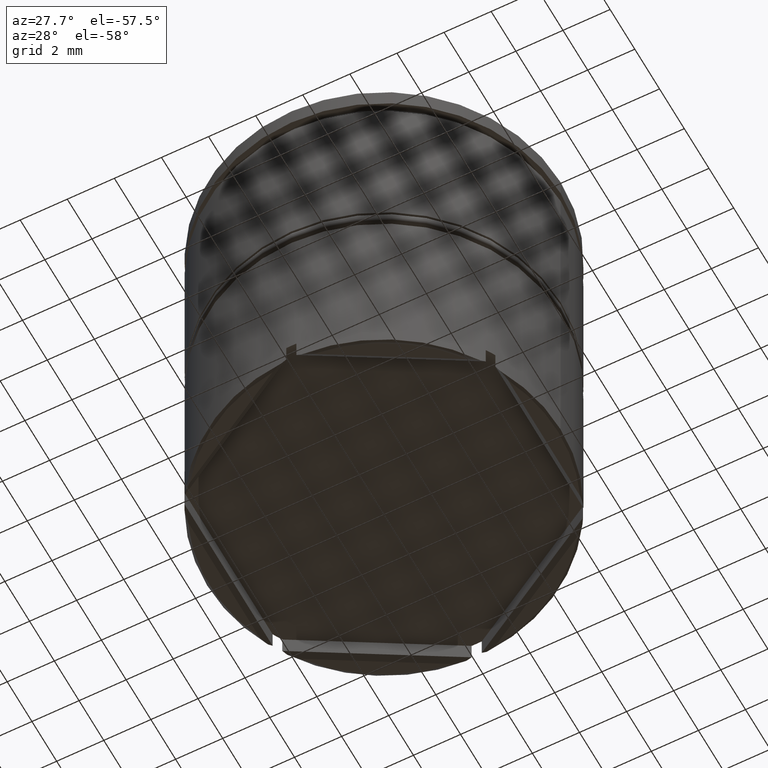
[diagram: clean part render]
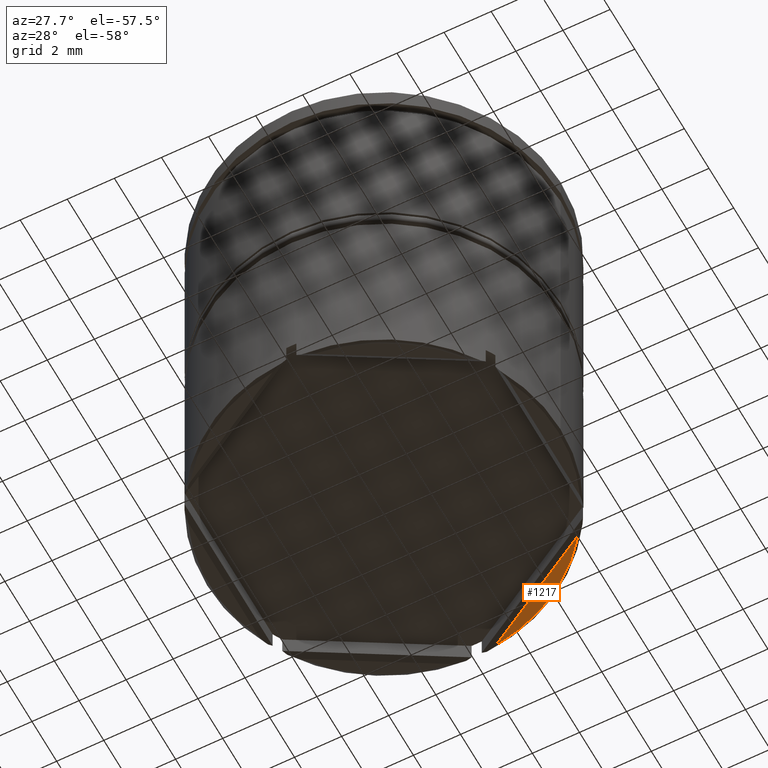
[diagram: same view with one face highlighted and labeled with its STEP entity id]
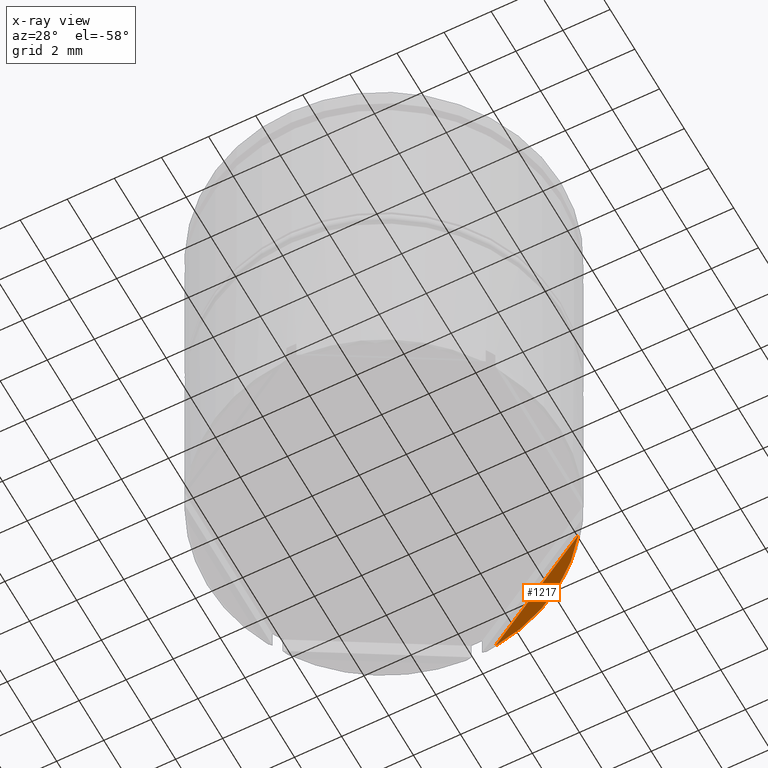
[diagram: x-ray of the same camera — body ghosted, the highlighted face saturated]
A machine part, auxiliary view. The second image highlights one B-rep face of the part: STEP entity #1217.
The next image is the same camera in x-ray: the body ghosted, the highlighted face saturated — about 0% of this face is hidden behind the body in this view.
In plain terms, the highlighted planar face has unit normal (0, 0, -1).
Its self-contained STEP definition (entity closure, byte-faithful):
#26 = ORIENTED_EDGE ( 'NONE', *, *, #313, .T. ) ;
#50 = CARTESIAN_POINT ( 'NONE',  ( 0.000000000000000000, 7.500000000000000000, -17.50000000000000000 ) ) ;
#190 = LINE ( 'NONE', #1304, #470 ) ;
#241 = CARTESIAN_POINT ( 'NONE',  ( 0.000000000000000000, 0.000000000000000000, -17.50000000000000000 ) ) ;
#282 = DIRECTION ( 'NONE',  ( -0.8660254037844385966, 0.5000000000000002220, 0.000000000000000000 ) ) ;
#296 = DIRECTION ( 'NONE',  ( 0.000000000000000000, 0.000000000000000000, -1.000000000000000000 ) ) ;
#310 = DIRECTION ( 'NONE',  ( -1.000000000000000000, 0.000000000000000000, -0.000000000000000000 ) ) ;
#313 = EDGE_CURVE ( 'NONE', #410, #652, #190, .T. ) ;
#410 = VERTEX_POINT ( 'NONE', #1343 ) ;
#470 = VECTOR ( 'NONE', #282, 999.9999999999998863 ) ;
#482 = DIRECTION ( 'NONE',  ( -1.000000000000000000, 0.000000000000000000, 0.000000000000000000 ) ) ;
#610 = CIRCLE ( 'NONE', #1375, 7.400000000000006573 ) ;
#640 = CARTESIAN_POINT ( 'NONE',  ( 0.8721550680470955275, 7.348424697666831484, -17.50000000000000000 ) ) ;
#652 = VERTEX_POINT ( 'NONE', #640 ) ;
#716 = EDGE_LOOP ( 'NONE', ( #1592, #26 ) ) ;
#830 = FACE_OUTER_BOUND ( 'NONE', #716, .T. ) ;
#933 = PLANE ( 'NONE',  #960 ) ;
#960 = AXIS2_PLACEMENT_3D ( 'NONE', #50, #296, #310 ) ;
#1217 = ADVANCED_FACE ( 'NONE', ( #830 ), #933, .T. ) ;
#1304 = CARTESIAN_POINT ( 'NONE',  ( 0.5017246507621122564, 7.562292798802341842, -17.50000000000000000 ) ) ;
#1343 = CARTESIAN_POINT ( 'NONE',  ( 5.927844931952911622, 4.429520793801547285, -17.50000000000000000 ) ) ;
#1365 = EDGE_CURVE ( 'NONE', #652, #410, #610, .T. ) ;
#1366 = DIRECTION ( 'NONE',  ( 0.000000000000000000, 0.000000000000000000, -1.000000000000000000 ) ) ;
#1375 = AXIS2_PLACEMENT_3D ( 'NONE', #241, #1366, #482 ) ;
#1592 = ORIENTED_EDGE ( 'NONE', *, *, #1365, .T. ) ;